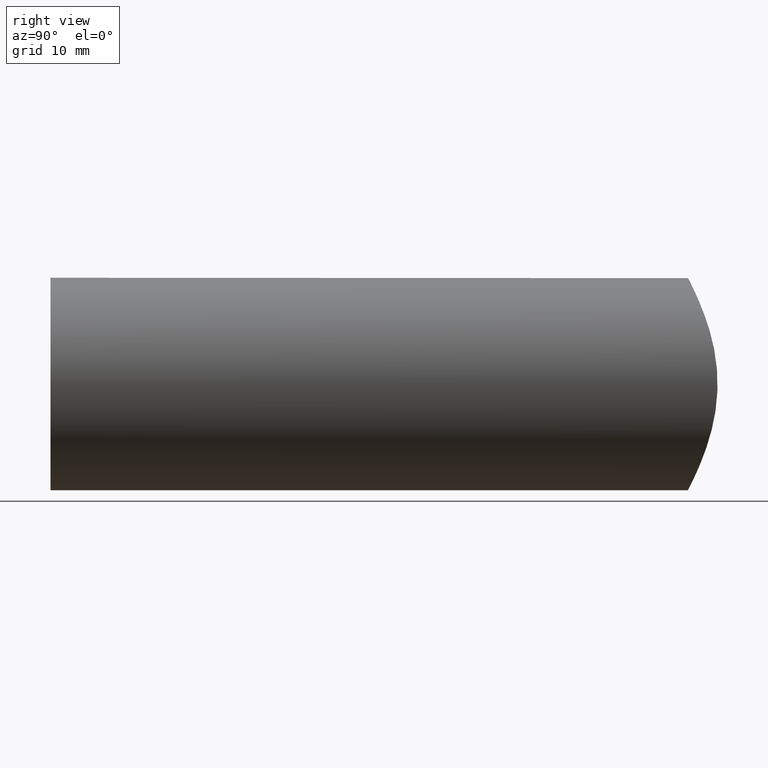
[diagram: clean part render]
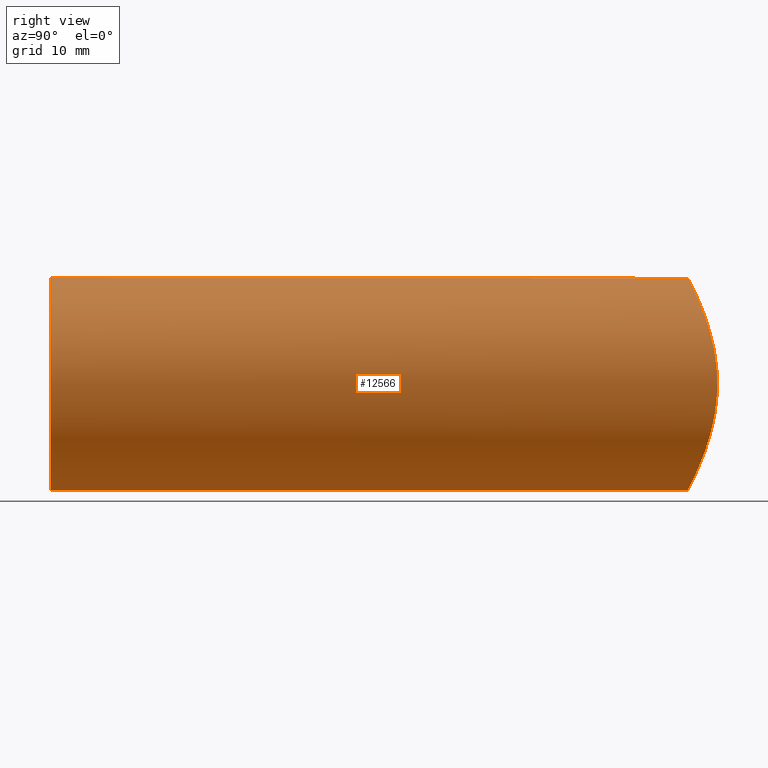
[diagram: same view with one face highlighted and labeled with its STEP entity id]
A machine part, right view. The second image highlights one B-rep face of the part: STEP entity #12566.
In plain terms, the highlighted cylindrical surface (bore or boss wall) has radius 12.5 mm, axis along (-0, -1, -0).
Its self-contained STEP definition (entity closure, byte-faithful):
#37 = CARTESIAN_POINT ( 'NONE',  ( -11.18556598586051010, 77.74549956250866956, 5.594425883101207475 ) ) ;
#82 = CARTESIAN_POINT ( 'NONE',  ( 5.616393516081356729, 75.64972558784738510, 11.19673421751230258 ) ) ;
#131 = CARTESIAN_POINT ( 'NONE',  ( -10.61159664689884252, 77.45488404047154063, -6.618618285412095403 ) ) ;
#190 = CARTESIAN_POINT ( 'NONE',  ( -6.316747293375139627, 75.83777653740196456, -10.79430669075418692 ) ) ;
#950 = CARTESIAN_POINT ( 'NONE',  ( 12.06284593198464172, 78.22800179751477856, -3.302785208884871260 ) ) ;
#1045 = CARTESIAN_POINT ( 'NONE',  ( 1.666427008392844522, 75.04383638825332525, -12.41589289394555884 ) ) ;
#1093 = CARTESIAN_POINT ( 'NONE',  ( 9.125846458580165077, 76.78856738321623254, -8.551539796307121577 ) ) ;
#1137 = CARTESIAN_POINT ( 'NONE',  ( -3.316877259944496004, 75.21483071661621977, -12.08057711187188410 ) ) ;
#1183 = CARTESIAN_POINT ( 'NONE',  ( 9.412192866964703697, 76.90790369320748709, 8.235475087461979982 ) ) ;
#1226 = CYLINDRICAL_SURFACE ( 'NONE', #6645, 12.50000000000000000 ) ;
#1238 = CARTESIAN_POINT ( 'NONE',  ( -12.47702995727797415, 78.47275003880018573, 0.8636410543319847921 ) ) ;
#1291 = CARTESIAN_POINT ( 'NONE',  ( 4.493358900822063795, 75.41862216006218489, 11.67154270457320919 ) ) ;
#1340 = CARTESIAN_POINT ( 'NONE',  ( -12.09488317661415913, 78.24612544468091357, -3.263940484297841227 ) ) ;
#1749 = DIRECTION ( 'NONE',  ( -0.000000000000000000, -1.000000000000000000, -0.000000000000000000 ) ) ;
#1804 = DIRECTION ( 'NONE',  ( 0.000000000000000000, 0.000000000000000000, -1.000000000000000000 ) ) ;
#2045 = CARTESIAN_POINT ( 'NONE',  ( 4.073928212782695901, 75.34271850014701499, -11.82477579534296197 ) ) ;
#2096 = CARTESIAN_POINT ( 'NONE',  ( 12.17629244726874482, 78.29408420261459867, 2.856247619983864894 ) ) ;
#2247 = CARTESIAN_POINT ( 'NONE',  ( 11.67831068887509716, 78.01066302200520397, -4.475638660923367596 ) ) ;
#2298 = CARTESIAN_POINT ( 'NONE',  ( -10.58722758480828574, 77.44295697200134043, 6.657615752389719255 ) ) ;
#2344 = CARTESIAN_POINT ( 'NONE',  ( -6.665751520387539486, 75.93550895653356747, -10.58210857748916567 ) ) ;
#2396 = CARTESIAN_POINT ( 'NONE',  ( -11.36069409278679920, 77.83828525848096547, 5.229597903835157879 ) ) ;
#2443 = CARTESIAN_POINT ( 'NONE',  ( -8.264077568507039118, 76.44978608018516297, 9.412695405477595756 ) ) ;
#2504 = CARTESIAN_POINT ( 'NONE',  ( -10.81973109692051693, 77.55827660612015961, -6.272818569617441220 ) ) ;
#2680 = VERTEX_POINT ( 'NONE', #11494 ) ;
#2795 = B_SPLINE_CURVE_WITH_KNOTS ( 'NONE', 3,
 ( #6741, #6794, #1045, #5550, #4565, #2045, #12455, #12357, #9101, #13565, #13666, #13514, #4521, #1093, #6640, #6691, #5684, #14727, #5637, #2247, #14677, #950, #11290, #3393, #13618, #4473, #7888, #3347, #11333, #2096, #6588, #7739, #10112, #10342, #9193, #7974, #11631, #1183, #12750, #8171, #9238, #8069, #82, #1291, #10491, #3485, #12645, #6933, #4801, #9293, #7031, #11472, #5823, #13853, #3541, #12798, #11579, #6982, #2443, #5774, #5731, #2298, #3597, #37, #2396, #13705, #4656, #10445, #13801, #1238, #10394, #10298, #6841, #6888, #5881, #1340, #4746, #13902, #14867, #2504, #131, #8023, #11522, #3440, #11425, #12698, #4704, #2344, #190, #3650, #8119, #9337, #1137, #9145, #4605, #12603, #13750, #11835 ),
 .UNSPECIFIED., .T., .F.,
 ( 4, 2, 2, 2, 2, 2, 2, 2, 2, 2, 2, 2, 2, 2, 2, 2, 2, 2, 2, 2, 2, 2, 2, 2, 2, 2, 2, 2, 2, 2, 2, 2, 2, 2, 2, 2, 2, 2, 2, 2, 2, 2, 2, 2, 2, 2, 2, 2, 4 ),
 ( 0.000000000000000000, 0.002486133216992819726, 0.003729199825489227637, 0.004972266433985636849, 0.007458399650978455274, 0.008701466259474866655, 0.009944532867971275433, 0.01118759947646768595, 0.01243066608496409819, 0.01491679930195691922, 0.01615986591045333320, 0.01740293251894974372, 0.01988906573594257168, 0.02113213234443898914, 0.02237519895293540312, 0.02361826556143181710, 0.02486133216992823108, 0.02734746538692106252, 0.02859053199541747650, 0.02983359860391389742, 0.03231973182090672192, 0.03480586503789954295, 0.03604893164639594999, 0.03729199825489235703, 0.03977813147188517112, 0.04102119808038158510, 0.04226426468887799215, 0.04475039790587081318, 0.04723653112286363420, 0.04972266433985644829, 0.05220879755684926932, 0.05345186416534567636, 0.05469493077384209034, 0.05718106399083490443, 0.05842413059933131148, 0.05966719720782772546, 0.06091026381632413250, 0.06215333042482054648, 0.06463946364181336057, 0.06588253025030976762, 0.06712559685880617466, 0.06836866346730258170, 0.06961173007579898875, 0.07209786329279180284, 0.07334092990128820988, 0.07458399650978461692, 0.07707012972677744489, 0.07831319633527385193, 0.07955626294377027286 ),
 .UNSPECIFIED. ) ;
#2852 = FACE_OUTER_BOUND ( 'NONE', #10148, .T. ) ;
#3347 = CARTESIAN_POINT ( 'NONE',  ( 12.39939560149940156, 78.42610661434582653, 1.636956017459156199 ) ) ;
#3393 = CARTESIAN_POINT ( 'NONE',  ( 12.41328738822395650, 78.43359788489519246, -1.685670540479240254 ) ) ;
#3440 = CARTESIAN_POINT ( 'NONE',  ( -9.411987761562489396, 76.90781012069029998, -8.235748521031609926 ) ) ;
#3485 = CARTESIAN_POINT ( 'NONE',  ( 3.322960808794975573, 75.22639354888728747, 12.05726743121238265 ) ) ;
#3509 = CARTESIAN_POINT ( 'NONE',  ( 0.000000000000000000, 0.000000000000000000, 12.50000000000000000 ) ) ;
#3541 = CARTESIAN_POINT ( 'NONE',  ( -4.048937038016216405, 75.32909628045071315, 11.85496764630668842 ) ) ;
#3597 = CARTESIAN_POINT ( 'NONE',  ( -10.79939258952037839, 77.54808700369301278, 6.307741837057436740 ) ) ;
#3650 = CARTESIAN_POINT ( 'NONE',  ( -5.595272729540679890, 75.65417096119982432, -11.18531521167289711 ) ) ;
#3783 = DIRECTION ( 'NONE',  ( 0.000000000000000000, 1.000000000000000000, 0.000000000000000000 ) ) ;
#4283 = EDGE_LOOP ( 'NONE', ( #4467 ) ) ;
#4447 = AXIS2_PLACEMENT_3D ( 'NONE', #4730, #3783, #13882 ) ;
#4467 = ORIENTED_EDGE ( 'NONE', *, *, #13989, .T. ) ;
#4473 = CARTESIAN_POINT ( 'NONE',  ( 12.50105946675680713, 78.48732800745126781, 0.3829992845280569269 ) ) ;
#4521 = CARTESIAN_POINT ( 'NONE',  ( 8.560607551957428285, 76.56613982061726631, -9.117340885081242519 ) ) ;
#4565 = CARTESIAN_POINT ( 'NONE',  ( 3.280682860040504689, 75.22050641012256733, -12.06894086756879325 ) ) ;
#4605 = CARTESIAN_POINT ( 'NONE',  ( -1.676951933329619893, 75.05466276626709998, -12.39411511674445698 ) ) ;
#4656 = CARTESIAN_POINT ( 'NONE',  ( -12.07716066025249901, 78.23582747360669032, 3.330140473100294596 ) ) ;
#4704 = CARTESIAN_POINT ( 'NONE',  ( -7.670003217709709276, 76.23967696440641362, -9.903237437807746346 ) ) ;
#4730 = CARTESIAN_POINT ( 'NONE',  ( 0.000000000000000000, 0.000000000000000000, 0.000000000000000000 ) ) ;
#4746 = CARTESIAN_POINT ( 'NONE',  ( -11.85457163419845195, 78.10669073264533324, -4.048891219634837668 ) ) ;
#4801 = CARTESIAN_POINT ( 'NONE',  ( 0.8701867918572706584, 75.00139095811007905, 12.49731265922302015 ) ) ;
#5358 = FACE_OUTER_BOUND ( 'NONE', #4283, .T. ) ;
#5550 = CARTESIAN_POINT ( 'NONE',  ( 2.880084786186518198, 75.16890301952329878, -12.17068015586779772 ) ) ;
#5637 = CARTESIAN_POINT ( 'NONE',  ( 11.20659804588976804, 77.75461045228877310, -5.596363829670499612 ) ) ;
#5684 = CARTESIAN_POINT ( 'NONE',  ( 10.14872829841706015, 77.23452566915328532, -7.308644647692623231 ) ) ;
#5731 = CARTESIAN_POINT ( 'NONE',  ( -9.909193422454766420, 77.12091001598065532, 7.662299098335452641 ) ) ;
#5774 = CARTESIAN_POINT ( 'NONE',  ( -9.399704287991012208, 76.89600599078944754, 8.278850895681339139 ) ) ;
#5823 = CARTESIAN_POINT ( 'NONE',  ( -2.042669042519714928, 75.08308288046927714, 12.33891662597604011 ) ) ;
#5881 = CARTESIAN_POINT ( 'NONE',  ( -12.33897836552500316, 78.38991737696545670, -2.042544866178391594 ) ) ;
#6588 = CARTESIAN_POINT ( 'NONE',  ( 12.07568711241505000, 78.23542578517957224, 3.255345404598879888 ) ) ;
#6640 = CARTESIAN_POINT ( 'NONE',  ( 9.394847521644635435, 76.90057323516757037, -8.255202184159767143 ) ) ;
#6645 = AXIS2_PLACEMENT_3D ( 'NONE', #10852, #1749, #1804 ) ;
#6691 = CARTESIAN_POINT ( 'NONE',  ( 9.905737200678293775, 77.12327709735983206, -7.634650847773375659 ) ) ;
#6741 = CARTESIAN_POINT ( 'NONE',  ( -1.626303258728256651E-16, 75.00000000000001421, -12.50000000000000355 ) ) ;
#6794 = CARTESIAN_POINT ( 'NONE',  ( 0.8416139926660887172, 74.99999999999998579, -12.50000000000000000 ) ) ;
#6841 = CARTESIAN_POINT ( 'NONE',  ( -12.48178325670625632, 78.47562429088374358, -0.7935034702485436187 ) ) ;
#6888 = CARTESIAN_POINT ( 'NONE',  ( -12.40093975770249735, 78.42703164710890462, -1.625193573246784373 ) ) ;
#6933 = CARTESIAN_POINT ( 'NONE',  ( 1.693364542386435190, 75.04548548441425737, 12.41272702035197639 ) ) ;
#6982 = CARTESIAN_POINT ( 'NONE',  ( -7.632636067880916642, 76.22716114424368072, 9.932055065716140163 ) ) ;
#7031 = CARTESIAN_POINT ( 'NONE',  ( -0.7937935283653622109, 75.00941349151192128, 12.48185230467801787 ) ) ;
#7652 = EDGE_CURVE ( 'NONE', #9466, #9466, #8830, .T. ) ;
#7739 = CARTESIAN_POINT ( 'NONE',  ( 11.83531592272857758, 78.09846963203420955, 4.042869024516787313 ) ) ;
#7888 = CARTESIAN_POINT ( 'NONE',  ( 12.48103956478300702, 78.47517425164691929, 0.8051631312347361513 ) ) ;
#7974 = CARTESIAN_POINT ( 'NONE',  ( 10.16551749499001467, 77.24231694392014447, 7.285275361540624495 ) ) ;
#8023 = CARTESIAN_POINT ( 'NONE',  ( -10.16369364889730420, 77.24147719938140710, -7.287758421890151439 ) ) ;
#8069 = CARTESIAN_POINT ( 'NONE',  ( 6.328959426137787503, 75.83337971956817114, 10.81014121441068099 ) ) ;
#8119 = CARTESIAN_POINT ( 'NONE',  ( -5.226925829154954073, 75.56930795605691742, -11.36202694756624787 ) ) ;
#8171 = CARTESIAN_POINT ( 'NONE',  ( 8.296859981971218545, 76.46183937423685961, 9.383618653070689319 ) ) ;
#8830 = CIRCLE ( 'NONE', #4447, 12.50000000000000000 ) ;
#9101 = CARTESIAN_POINT ( 'NONE',  ( 6.306957372526911243, 75.82748068079618520, -10.82273894371697587 ) ) ;
#9145 = CARTESIAN_POINT ( 'NONE',  ( -2.094311208364741717, 75.08749313957576987, -12.33032299215526351 ) ) ;
#9193 = CARTESIAN_POINT ( 'NONE',  ( 10.83888041841365357, 77.56323408702181155, 6.278582914400733905 ) ) ;
#9238 = CARTESIAN_POINT ( 'NONE',  ( 7.679687139352859404, 76.24273228511961520, 9.896326891067065645 ) ) ;
#9293 = CARTESIAN_POINT ( 'NONE',  ( -0.3758445865019311993, 74.99935297399902367, 12.50125005891698038 ) ) ;
#9337 = CARTESIAN_POINT ( 'NONE',  ( -4.099037510848098975, 75.33803756378462424, -11.83695617156265811 ) ) ;
#9466 = VERTEX_POINT ( 'NONE', #3509 ) ;
#10112 = CARTESIAN_POINT ( 'NONE',  ( 11.69463221032094857, 78.01968349082271459, 4.433206286189488310 ) ) ;
#10148 = EDGE_LOOP ( 'NONE', ( #13108 ) ) ;
#10298 = CARTESIAN_POINT ( 'NONE',  ( -12.50113647660907645, 78.48737459274475725, -0.3784457863119028986 ) ) ;
#10342 = CARTESIAN_POINT ( 'NONE',  ( 11.22171516179564321, 77.76251763114063920, 5.567231885764321042 ) ) ;
#10394 = CARTESIAN_POINT ( 'NONE',  ( -12.49876076068150077, 78.48593744263713745, 0.4501265013655172953 ) ) ;
#10445 = CARTESIAN_POINT ( 'NONE',  ( -12.32893162694468892, 78.38393572538483056, 2.102821018098294914 ) ) ;
#10491 = CARTESIAN_POINT ( 'NONE',  ( 4.109752741455188207, 75.34892971800194061, 11.81226899662650709 ) ) ;
#10852 = CARTESIAN_POINT ( 'NONE',  ( 0.000000000000000000, 99.15000000000000568, 0.000000000000000000 ) ) ;
#11290 = CARTESIAN_POINT ( 'NONE',  ( 12.16623829432022674, 78.28821014725350835, -2.898783021241126967 ) ) ;
#11333 = CARTESIAN_POINT ( 'NONE',  ( 12.33814508041328928, 78.38942444237837037, 2.047052564725855728 ) ) ;
#11425 = CARTESIAN_POINT ( 'NONE',  ( -9.139284782924375961, 76.79403560448592714, -8.537292556855808456 ) ) ;
#11472 = CARTESIAN_POINT ( 'NONE',  ( -1.630651670391566999, 75.05147306847734967, 12.40031129654895814 ) ) ;
#11494 = CARTESIAN_POINT ( 'NONE',  ( 0.000000000000000000, 75.00000000000000000, -12.50000000000000000 ) ) ;
#11522 = CARTESIAN_POINT ( 'NONE',  ( -9.923924471011337900, 77.13145673881372488, -7.611096531981363711 ) ) ;
#11579 = CARTESIAN_POINT ( 'NONE',  ( -6.290458467577765944, 75.82310979107228377, 10.83203505537225908 ) ) ;
#11631 = CARTESIAN_POINT ( 'NONE',  ( 9.923142205795823401, 77.13111103054637852, 7.612074174934297943 ) ) ;
#11835 = CARTESIAN_POINT ( 'NONE',  ( -1.626303258728256651E-16, 75.00000000000001421, -12.50000000000000355 ) ) ;
#12357 = CARTESIAN_POINT ( 'NONE',  ( 5.594287980704869767, 75.64427812082081459, -11.20816533570559592 ) ) ;
#12455 = CARTESIAN_POINT ( 'NONE',  ( 4.463086516404182191, 75.41286688508515113, -11.68324080886738159 ) ) ;
#12566 = ADVANCED_FACE ( 'NONE', ( #2852, #5358 ), #1226, .T. ) ;
#12603 = CARTESIAN_POINT ( 'NONE',  ( -0.8415633137906065597, 75.01104361446216728, -12.47870299761530610 ) ) ;
#12645 = CARTESIAN_POINT ( 'NONE',  ( 2.916893301379968939, 75.17329496480513740, 12.16203323285879456 ) ) ;
#12698 = CARTESIAN_POINT ( 'NONE',  ( -8.287351939170411796, 76.45826186860352891, -9.392409702269306493 ) ) ;
#12750 = CARTESIAN_POINT ( 'NONE',  ( 9.143358402556374998, 76.79572744065201562, 8.532821530365831464 ) ) ;
#12798 = CARTESIAN_POINT ( 'NONE',  ( -5.575696691962567009, 75.63955654282345620, 11.21809945721803814 ) ) ;
#13108 = ORIENTED_EDGE ( 'NONE', *, *, #7652, .T. ) ;
#13514 = CARTESIAN_POINT ( 'NONE',  ( 8.264370655871715599, 76.45571132997646657, -9.386802674788906842 ) ) ;
#13565 = CARTESIAN_POINT ( 'NONE',  ( 7.317373504727923361, 76.13256476786168037, -10.14252889460935769 ) ) ;
#13618 = CARTESIAN_POINT ( 'NONE',  ( 12.49774924526884590, 78.48532554201318590, -0.8654298213824812569 ) ) ;
#13666 = CARTESIAN_POINT ( 'NONE',  ( 7.643601615584860731, 76.23917472201797807, -9.898850495652819603 ) ) ;
#13705 = CARTESIAN_POINT ( 'NONE',  ( -11.83278988928865516, 78.09445903304801107, 4.109907718995614800 ) ) ;
#13750 = CARTESIAN_POINT ( 'NONE',  ( -0.4208069963330476337, 75.00000000000002842, -12.50000000000000533 ) ) ;
#13801 = CARTESIAN_POINT ( 'NONE',  ( -12.39229586063314592, 78.42185618982530571, 1.689128689021142105 ) ) ;
#13853 = CARTESIAN_POINT ( 'NONE',  ( -3.260479979501057723, 75.20719823985105279, 12.09564845651103404 ) ) ;
#13882 = DIRECTION ( 'NONE',  ( 0.000000000000000000, 0.000000000000000000, 1.000000000000000000 ) ) ;
#13902 = CARTESIAN_POINT ( 'NONE',  ( -11.38086847299331694, 77.84904600285716469, -5.185983993912956613 ) ) ;
#13989 = EDGE_CURVE ( 'NONE', #2680, #2680, #2795, .T. ) ;
#14677 = CARTESIAN_POINT ( 'NONE',  ( 11.81847010116291408, 78.08899277737383215, -4.091992984200404138 ) ) ;
#14727 = CARTESIAN_POINT ( 'NONE',  ( 10.82438516625331992, 77.55592695536653025, -6.303536818163582467 ) ) ;
#14867 = CARTESIAN_POINT ( 'NONE',  ( -11.20397708090773392, 77.75514085818787180, -5.557493264728317506 ) ) ;